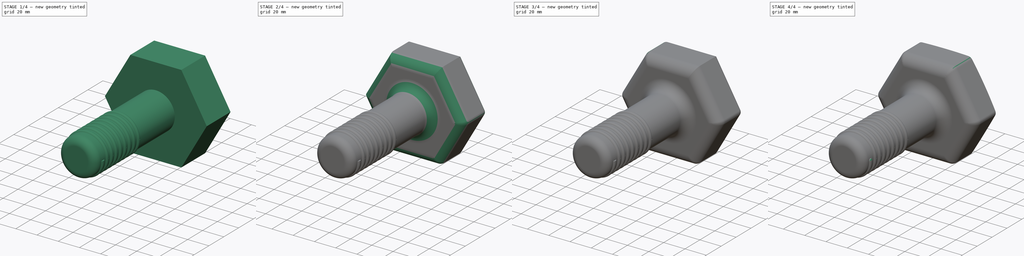
[diagram: build sequence overview — one tinted view per stage of 4, left to right]
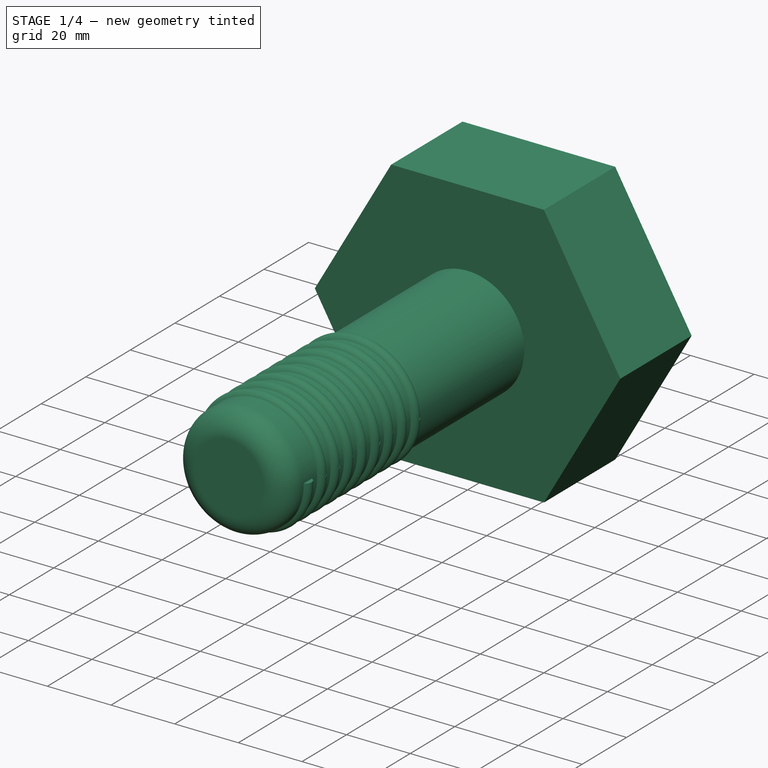
[diagram: stage 1 of 4 — iso view after this stage's code; geometry added in this stage tinted green]
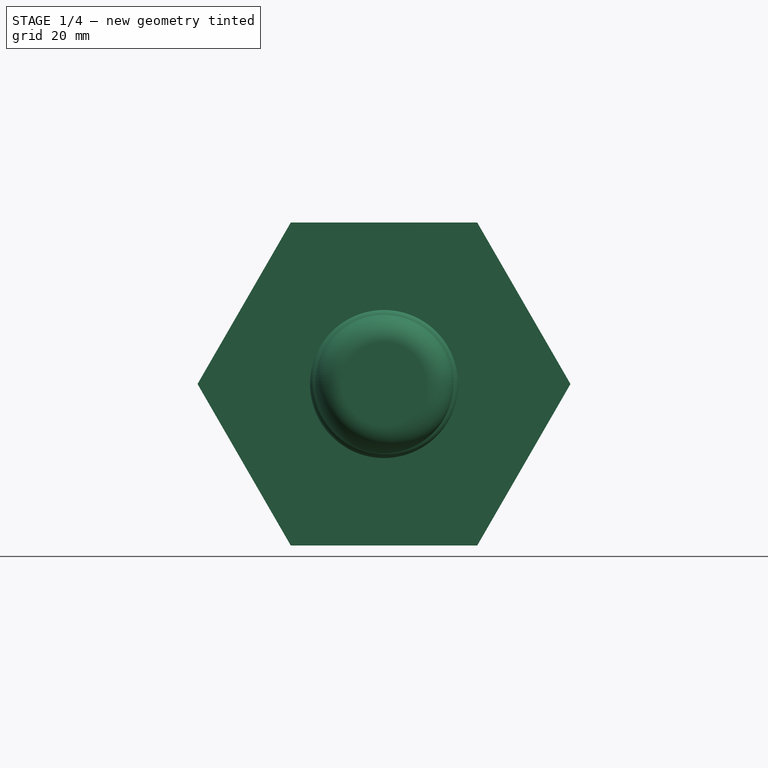
[diagram: stage 1 of 4 — front view after this stage's code; geometry added in this stage tinted green]
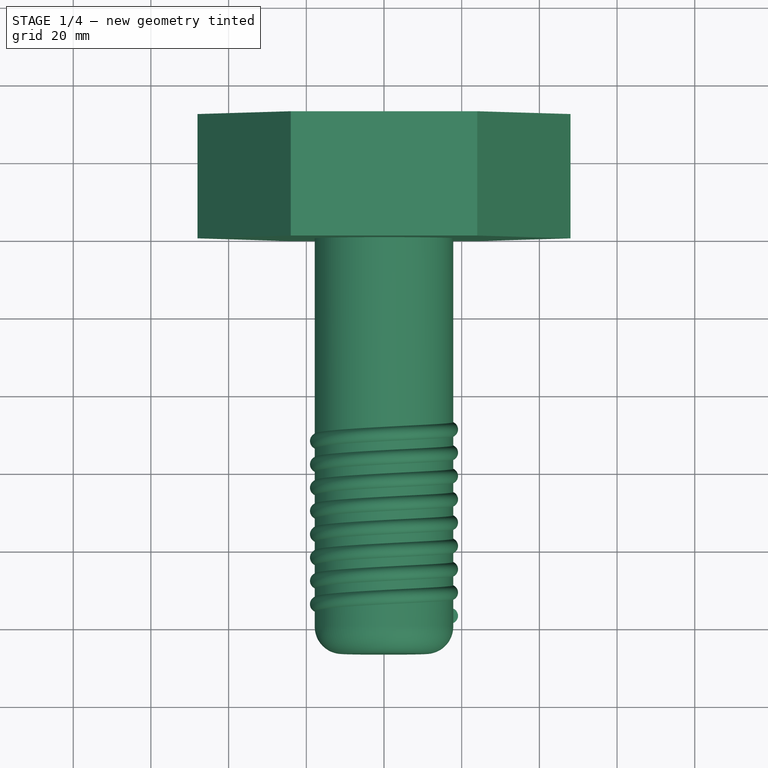
[diagram: stage 1 of 4 — top view after this stage's code; geometry added in this stage tinted green]
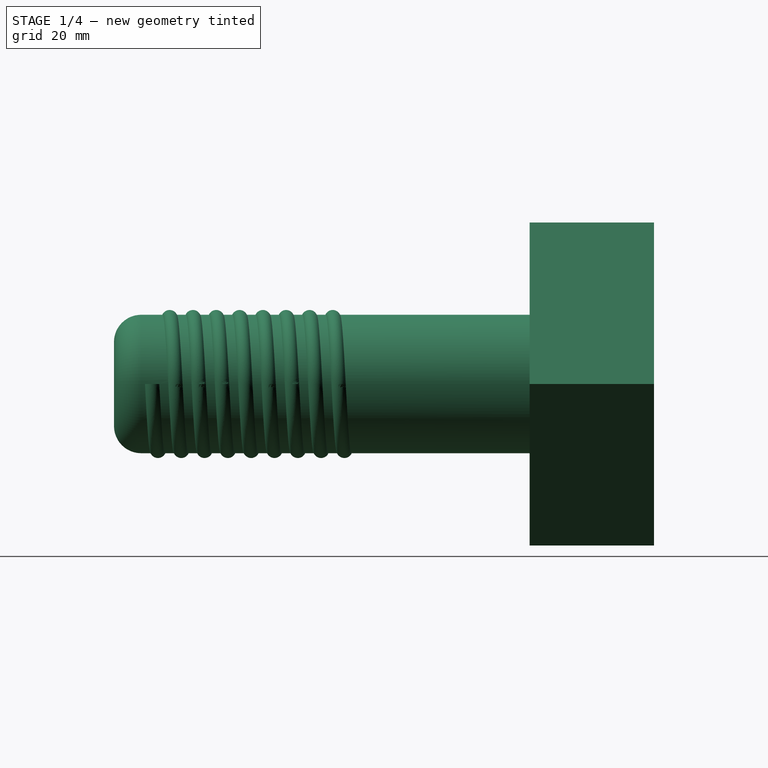
[diagram: stage 1 of 4 — right view after this stage's code; geometry added in this stage tinted green]
FCSTD DOCUMENT  (FreeCAD 0.21R33771 (Git))
Label: thread
License: All rights reserved
LicenseURL: http://en.wikipedia.org/wiki/All_rights_reserved
objects: PartDesign::Fillet×9, Sketcher::SketchObject×4, PartDesign::Pad×2, PartDesign::AdditiveHelix×1, Part::Sphere×1, PartDesign::Groove×1, PartDesign::Body×1
note: 32 computed .brp shape members not serialized (recipe doc carries the construction recipe); baked Part::Feature solids carry a one-line shape summary decoded from their .brp

FEATURE [Sketcher::SketchObject] Sketch
  FullyConstrained = false
  MapMode = 5
  Placement = pos=(0,0,0) rot=(1,0,0;1.5708rad)
  Support = -> [XZ_Plane]
  sketch-geometry (1):
    g0: Circle CenterX=0 CenterY=0 CenterZ=0 NormalX=0 NormalY=0 NormalZ=1 AngleXU=0 Radius=17.8219
  constraints (1):
    c: Coincident(g0,g-1)
FEATURE [PartDesign::Pad] Pad
  Direction = (0,-1,-2e-16)
  Length = 107
  Length2 = 10
  Placement = pos=(0,0,0) rot=(1,0,0;1.5708rad)
  Profile = -> Sketch
  ReferenceAxis = -> Sketch [N_Axis]
  Refine = true
  Type = 0
FEATURE [Sketcher::SketchObject] Sketch001
  FullyConstrained = false
  MapMode = 5
  Support = -> [XY_Plane]
  sketch-geometry (1):
    g0: Circle CenterX=17.0545 CenterY=-97.1889 CenterZ=0 NormalX=0 NormalY=0 NormalZ=1 AngleXU=0 Radius=2
  constraints (1):
    c: Radius(g0) = 2
FEATURE [PartDesign::AdditiveHelix] AdditiveHelix
  Angle = 0
  Axis = (0,1,0)
  Base = (0,0,0)
  BaseFeature = -> Pad
  Growth = 0
  HasBeenEdited = true
  Height = 50
  LeftHanded = false
  Mode = 0
  Outside = false
  Pitch = 5.99943
  Placement = pos=(0,0,0) rot=(1,0,0;1.5708rad)
  Profile = -> Sketch001
  ReferenceAxis = -> Sketch001 [V_Axis]
  Refine = true
  Turns = 8.33413
FEATURE [PartDesign::Fillet] Fillet
  Base = -> AdditiveHelix [Edge57]
  BaseFeature = -> AdditiveHelix
  Placement = pos=(0,0,0) rot=(1,0,0;1.5708rad)
  Radius = 7
  Refine = true
  SupportTransform = false
  UseAllEdges = false
FEATURE [Sketcher::SketchObject] Sketch002
  FullyConstrained = false
  MapMode = 5
  Placement = pos=(0,0,0) rot=(-1,0,0;1.5708rad)
  Support = -> [Fillet]
  sketch-geometry (7):
    g0: LineSegment StartX=48.0009 StartY=0 StartZ=0 EndX=24.0004 EndY=41.57 EndZ=0
    g1: LineSegment StartX=24.0004 StartY=41.57 StartZ=0 EndX=-24.0004 EndY=41.57 EndZ=0
    g2: LineSegment StartX=-24.0004 StartY=41.57 StartZ=0 EndX=-48.0009 EndY=-7.1e-15 EndZ=0
    g3: LineSegment StartX=-48.0009 StartY=-7.1e-15 StartZ=0 EndX=-24.0004 EndY=-41.57 EndZ=0
    g4: LineSegment StartX=-24.0004 StartY=-41.57 StartZ=0 EndX=24.0004 EndY=-41.57 EndZ=0
    g5: LineSegment StartX=24.0004 StartY=-41.57 StartZ=0 EndX=48.0009 EndY=0 EndZ=0
    g6: Circle CenterX=0 CenterY=0 CenterZ=0 NormalX=0 NormalY=0 NormalZ=1 AngleXU=0 Radius=48.0009
  constraints (19):
    c: Coincident(g0,g1)
    c: Coincident(g1,g2)
    c: Coincident(g2,g3)
    c: Coincident(g3,g4)
    c: Coincident(g4,g5)
    c: Coincident(g5,g0)
    c: Equal(g0,g1)
    c: Equal(g0,g2)
    c: Equal(g0,g3)
    c: Equal(g0,g5)
    c: PointOnObject(g0,g6)
    c: PointOnObject(g1,g6)
    c: PointOnObject(g2,g6)
    c: PointOnObject(g3,g6)
    c: PointOnObject(g4,g6)
    c: PointOnObject(g5,g6)
    c: Coincident(g6,g-1)
    c: PointOnObject(g5,g-1)
    c: Horizontal(g4)
FEATURE [PartDesign::Pad] Pad001
  BaseFeature = -> Fillet
  Direction = (0,1,2e-16)
  Length = 32
  Length2 = 10
  Placement = pos=(0,0,0) rot=(1,0,0;1.5708rad)
  Profile = -> Sketch002
  ReferenceAxis = -> Sketch002 [N_Axis]
  Refine = true
  Type = 0
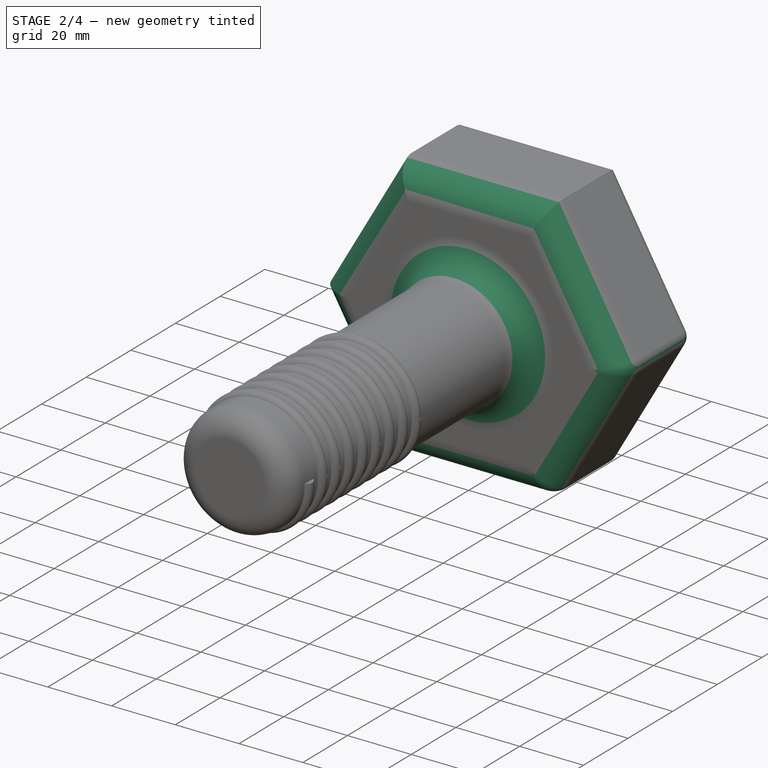
[diagram: stage 2 of 4 — iso view after this stage's code; geometry added in this stage tinted green]
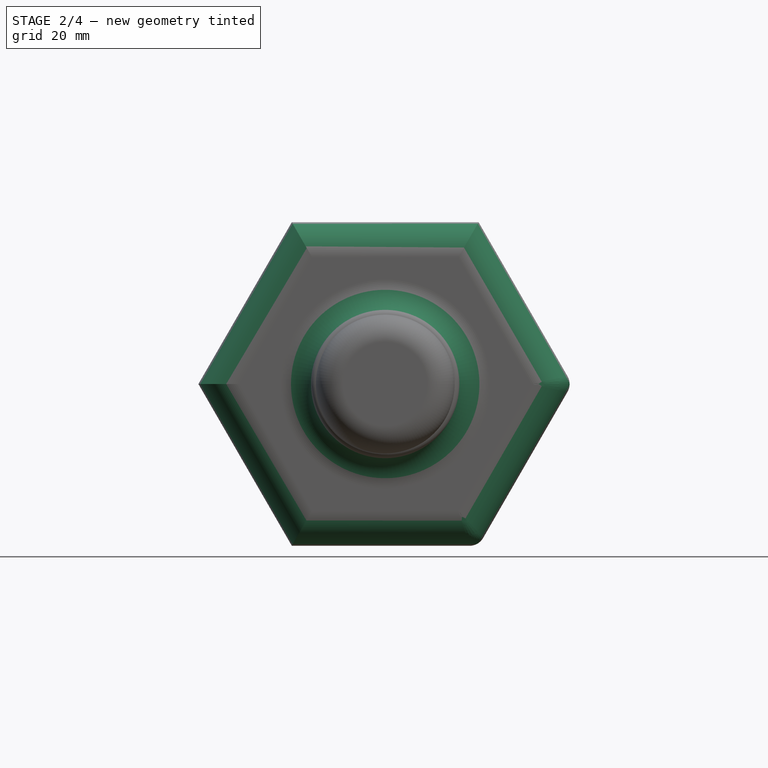
[diagram: stage 2 of 4 — front view after this stage's code; geometry added in this stage tinted green]
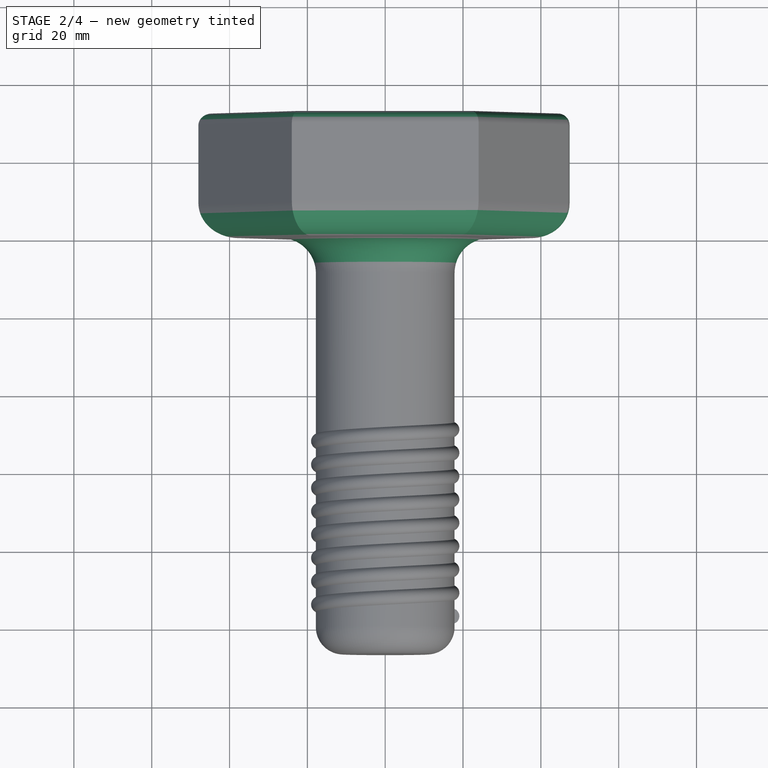
[diagram: stage 2 of 4 — top view after this stage's code; geometry added in this stage tinted green]
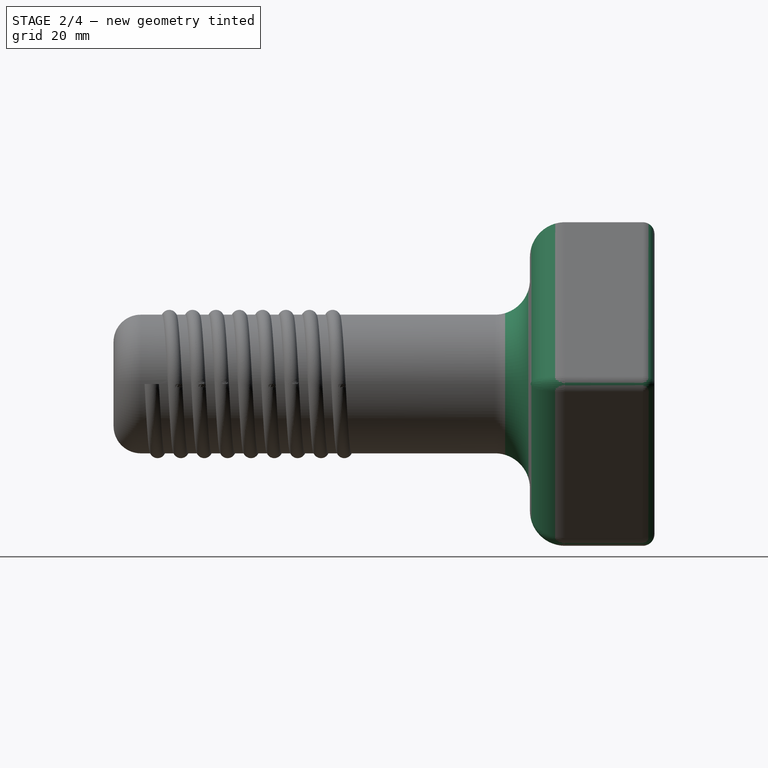
[diagram: stage 2 of 4 — right view after this stage's code; geometry added in this stage tinted green]
FEATURE [PartDesign::Fillet] Fillet001
  Base = -> Pad001 [Face4]
  BaseFeature = -> Pad001
  Placement = pos=(0,0,0) rot=(1,0,0;1.5708rad)
  Radius = 9
  Refine = true
  SupportTransform = false
  UseAllEdges = false
FEATURE [PartDesign::Fillet] Fillet002
  Base = -> Fillet001 [Face4]
  BaseFeature = -> Fillet001
  Placement = pos=(0,0,0) rot=(1,0,0;1.5708rad)
  Radius = 3
  Refine = true
  SupportTransform = false
  UseAllEdges = false
FEATURE [PartDesign::Fillet] Fillet003
  Base = -> Fillet002 [Face1]
  BaseFeature = -> Fillet002
  Placement = pos=(0,0,0) rot=(1,0,0;1.5708rad)
  Radius = 4
  Refine = true
  SupportTransform = false
  UseAllEdges = false
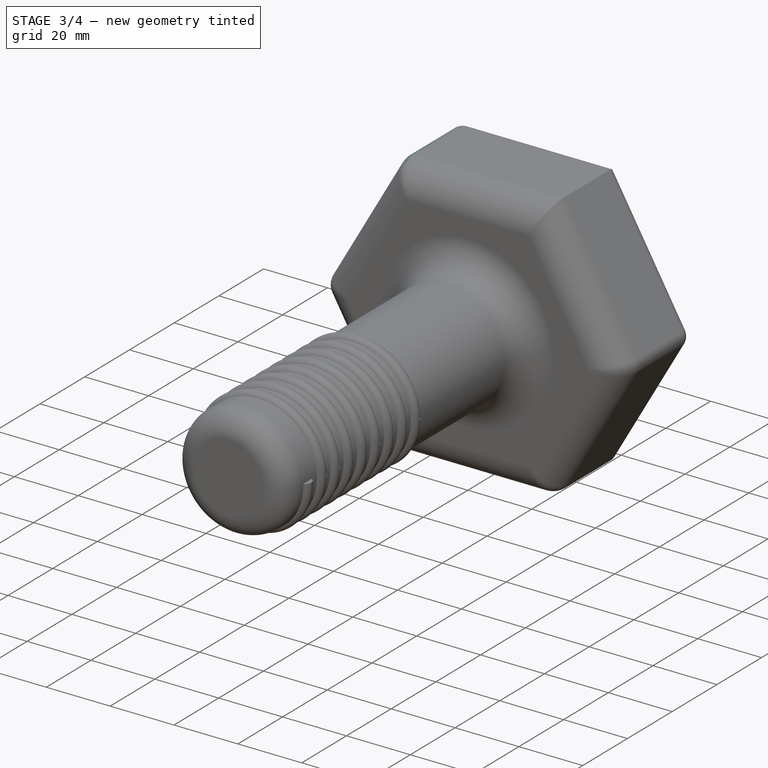
[diagram: stage 3 of 4 — iso view after this stage's code; geometry added in this stage tinted green]
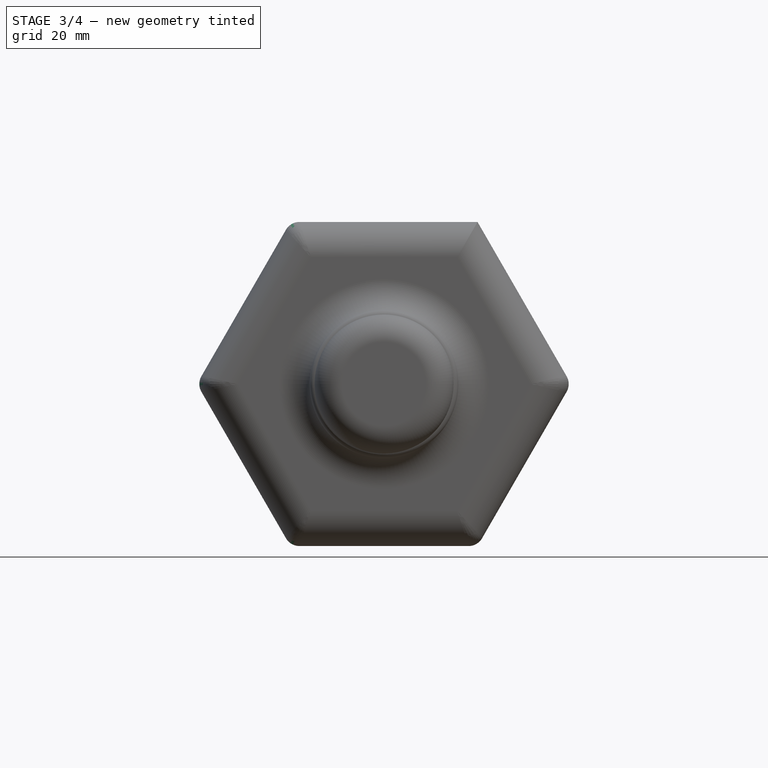
[diagram: stage 3 of 4 — front view after this stage's code; geometry added in this stage tinted green]
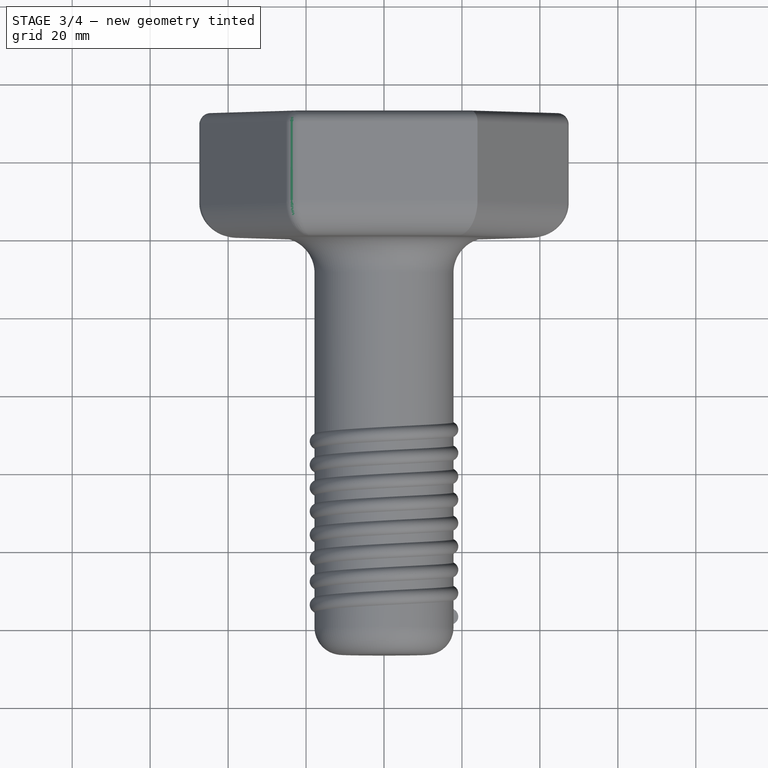
[diagram: stage 3 of 4 — top view after this stage's code; geometry added in this stage tinted green]
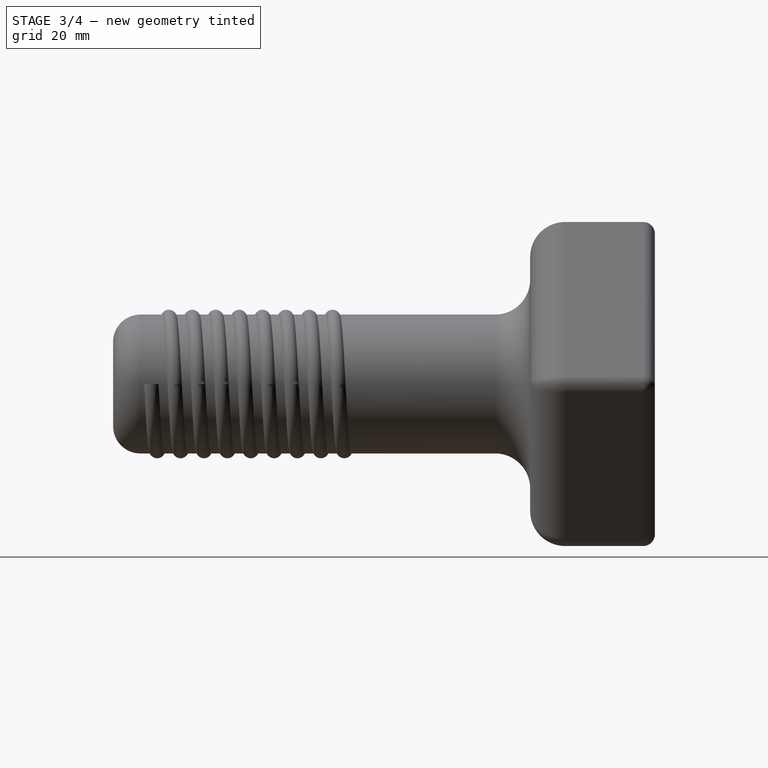
[diagram: stage 3 of 4 — right view after this stage's code; geometry added in this stage tinted green]
FEATURE [PartDesign::Fillet] Fillet004
  Base = -> Fillet003 [Face12]
  BaseFeature = -> Fillet003
  Placement = pos=(0,0,0) rot=(1,0,0;1.5708rad)
  Radius = 4
  Refine = true
  SupportTransform = false
  UseAllEdges = false
FEATURE [PartDesign::Fillet] Fillet005
  Base = -> Fillet004 [Face10]
  BaseFeature = -> Fillet004
  Placement = pos=(0,0,0) rot=(1,0,0;1.5708rad)
  Radius = 4
  Refine = true
  SupportTransform = false
  UseAllEdges = false
FEATURE [PartDesign::Fillet] Fillet006
  Base = -> Fillet005 [Face10]
  BaseFeature = -> Fillet005
  Placement = pos=(0,0,0) rot=(1,0,0;1.5708rad)
  Radius = 4
  Refine = true
  SupportTransform = false
  UseAllEdges = false
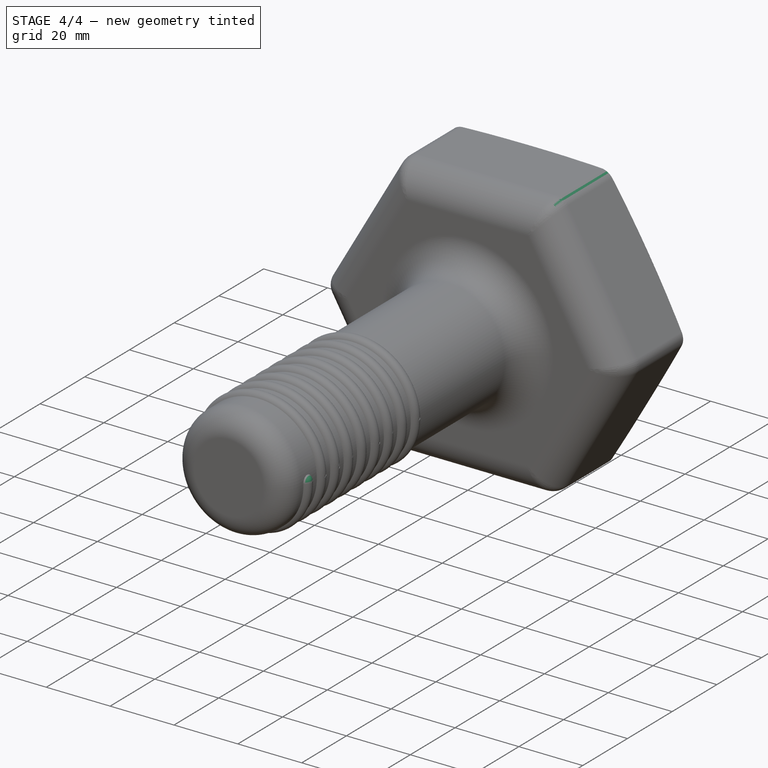
[diagram: stage 4 of 4 — iso view after this stage's code; geometry added in this stage tinted green]
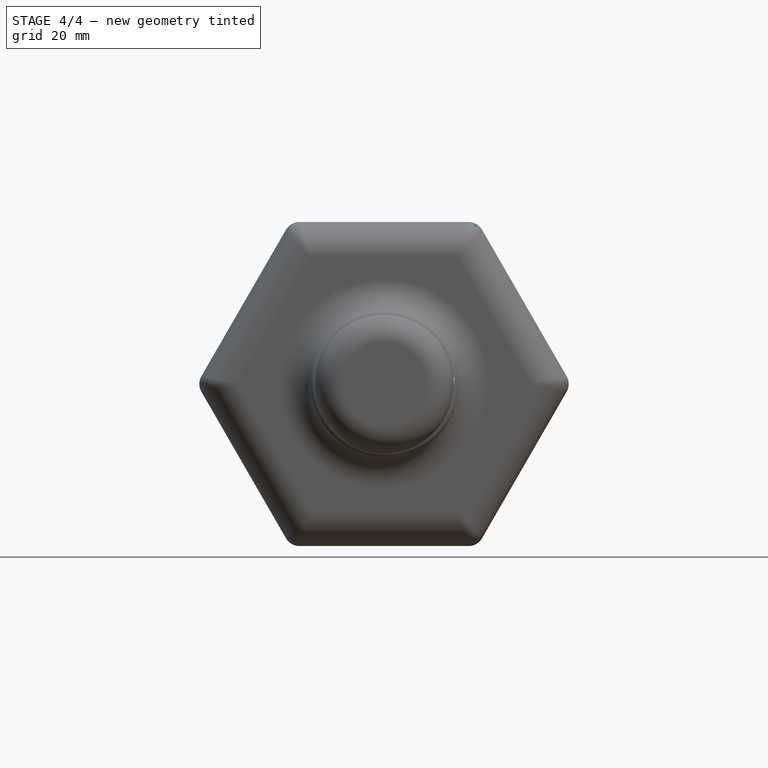
[diagram: stage 4 of 4 — front view after this stage's code; geometry added in this stage tinted green]
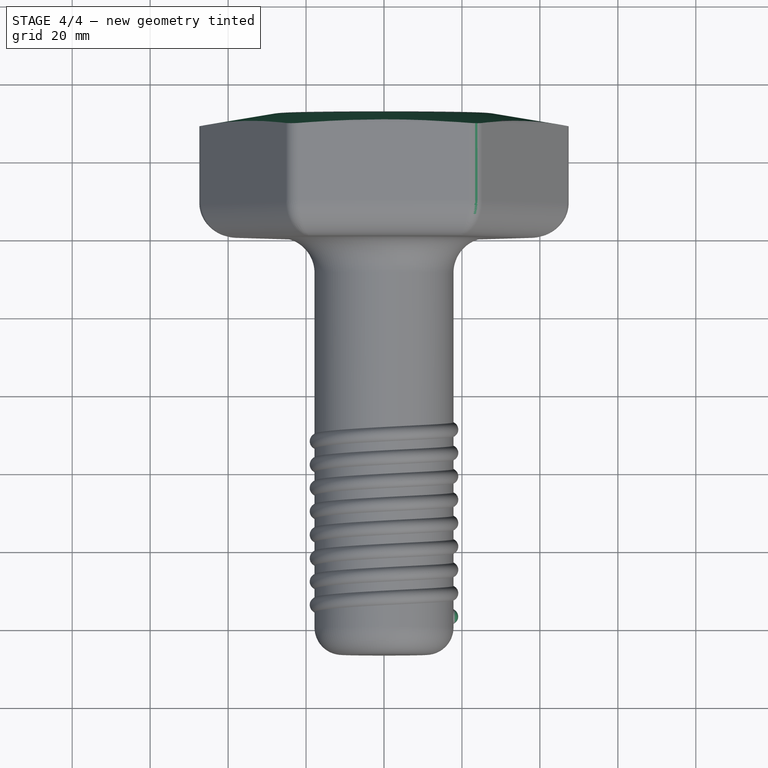
[diagram: stage 4 of 4 — top view after this stage's code; geometry added in this stage tinted green]
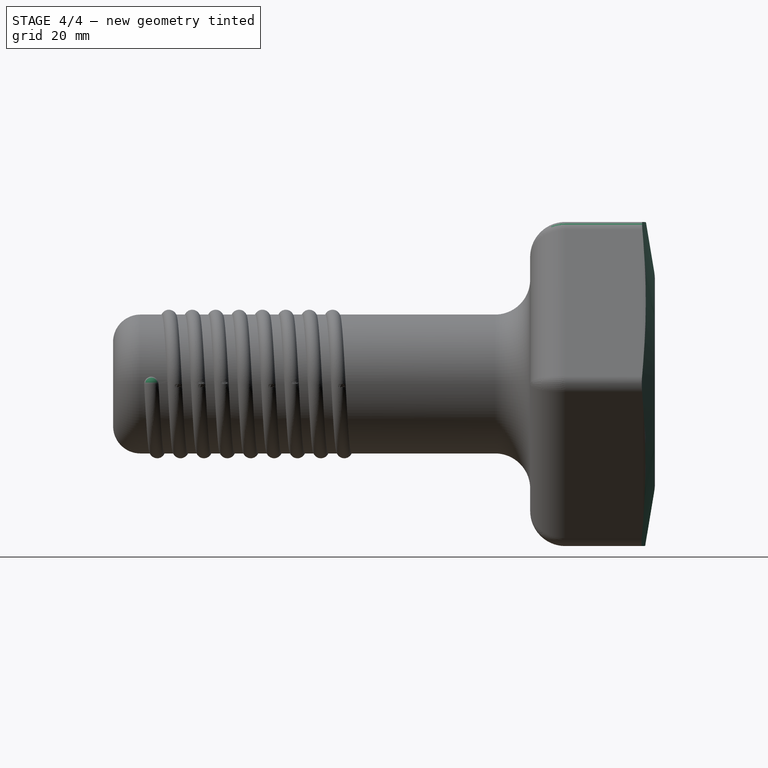
[diagram: stage 4 of 4 — right view after this stage's code; geometry added in this stage tinted green]
FEATURE [Part::Sphere] Sphere
  Angle1 = -90
  Angle2 = 90
  Angle3 = 360
  AttacherType = Attacher::AttachEngine3D
  Placement = pos=(17,-97.2,0) rot=(0,0,1;0rad)
  Radius = 2
FEATURE [PartDesign::Fillet] Fillet007
  Base = -> Fillet006 [Face10]
  BaseFeature = -> Fillet006
  Placement = pos=(0,0,0) rot=(1,0,0;1.5708rad)
  Radius = 4
  Refine = true
  SupportTransform = false
  UseAllEdges = false
FEATURE [Sketcher::SketchObject] Sketch003
  AttachmentOffset = pos=(0,-1,-41) rot=(0,0,1;0rad)
  FullyConstrained = false
  MapMode = 5
  Placement = pos=(0,1,0.569967) rot=(0,0,1;3.14159rad)
  Support = -> [Fillet007]
  sketch-geometry (3):
    g0: LineSegment StartX=21.8774 StartY=-31.8847 StartZ=0 EndX=48.0328 EndY=-27.517 EndZ=0
    g1: LineSegment StartX=48.0328 StartY=-27.517 StartZ=0 EndX=48.0328 EndY=-31.8847 EndZ=0
    g2: LineSegment StartX=48.0328 StartY=-31.8847 StartZ=0 EndX=21.8774 EndY=-31.8847 EndZ=0
  constraints (5):
    c: Vertical(g1)
    c: Coincident(g2,g0)
    c: Horizontal(g2)
    c: Coincident(g0,g1)
    c: Coincident(g1,g2)
FEATURE [PartDesign::Groove] Groove
  Angle = 360
  Axis = (0,-1,-2e-16)
  Base = (0,1,0.569967)
  BaseFeature = -> Fillet007
  Placement = pos=(0,0,0) rot=(1,0,0;1.5708rad)
  Profile = -> Sketch003
  ReferenceAxis = -> Sketch003 [V_Axis]
  Refine = true
FEATURE [PartDesign::Fillet] Fillet008
  Base = -> Groove [Face7]
  BaseFeature = -> Groove
  Placement = pos=(0,0,0) rot=(1,0,0;1.5708rad)
  Radius = 13
  Refine = true
  SupportTransform = false
  UseAllEdges = false
FEATURE [PartDesign::Body] Body
  Group = -> [Sketch,Pad,Sketch001,AdditiveHelix,Fillet,Sketch002,Pad001,Fillet001,Fillet002,Fillet003,Fillet004,Fillet005,Fillet006,Fillet007,Sketch003,Groove,Fillet008]
  Origin = -> Origin
  Tip = -> Fillet008
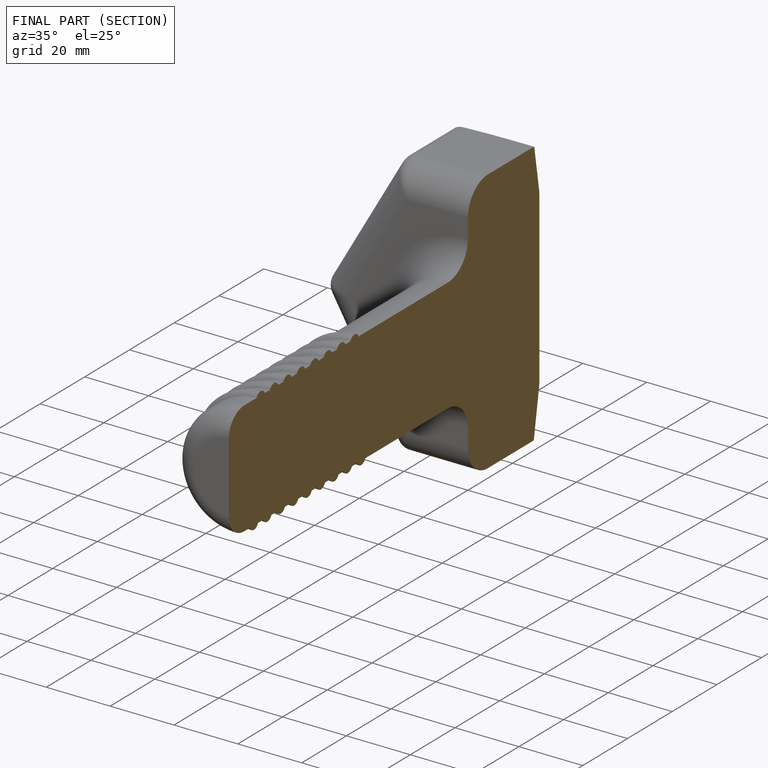
[diagram: finished part — half-section view (interior)]
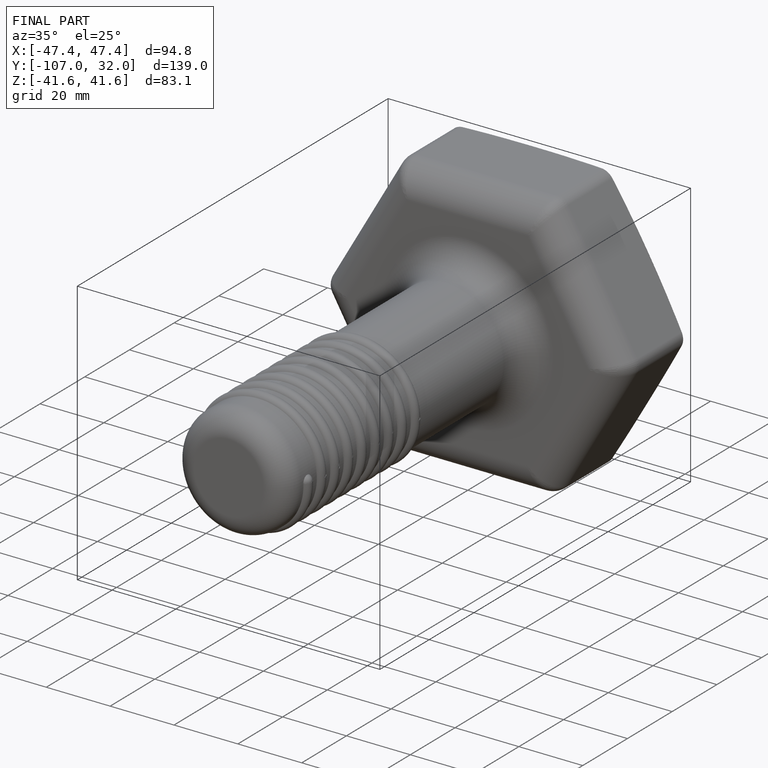
[diagram: finished part — iso view with bounding-box wireframe]
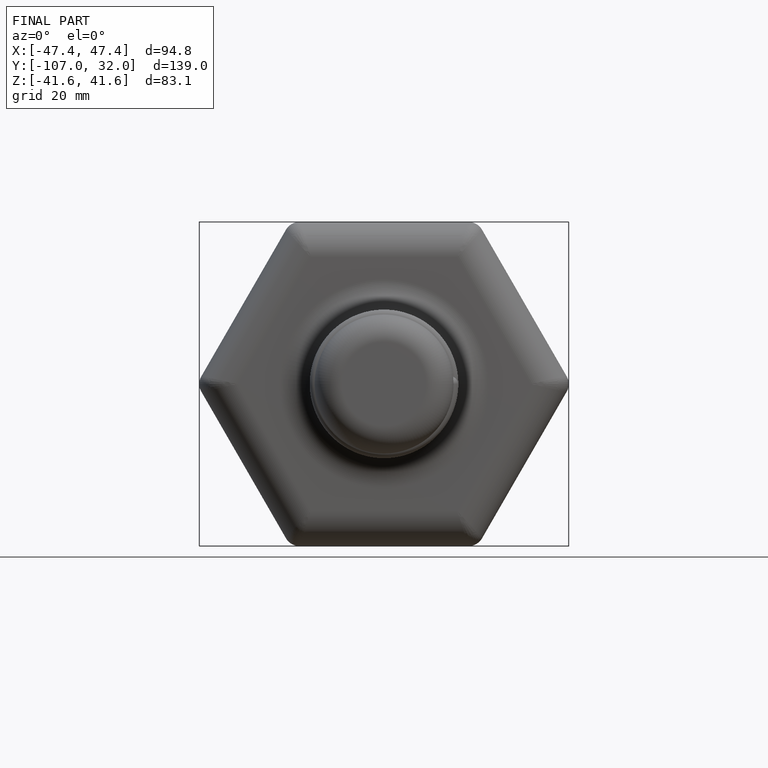
[diagram: finished part — front view with bounding-box wireframe]
